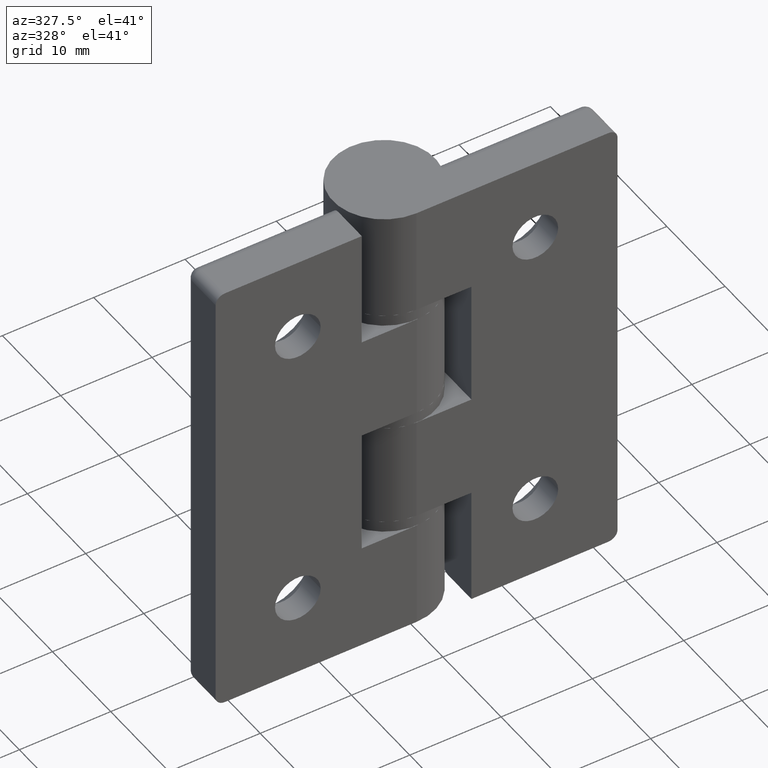
[diagram: clean part render]
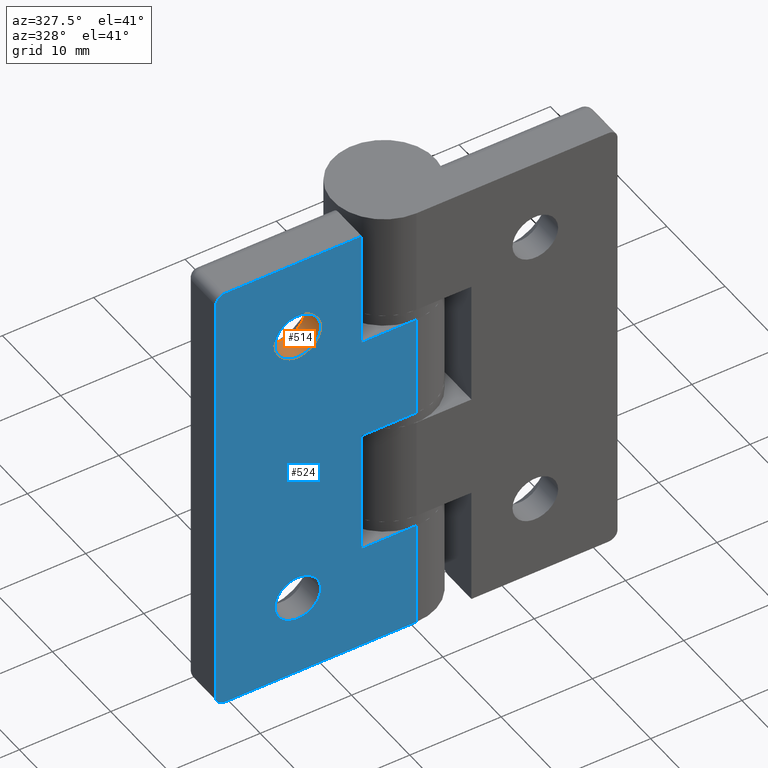
[diagram: same view with the hole feature highlighted: cylindrical wall and planar end face, labeled with their STEP entity ids]
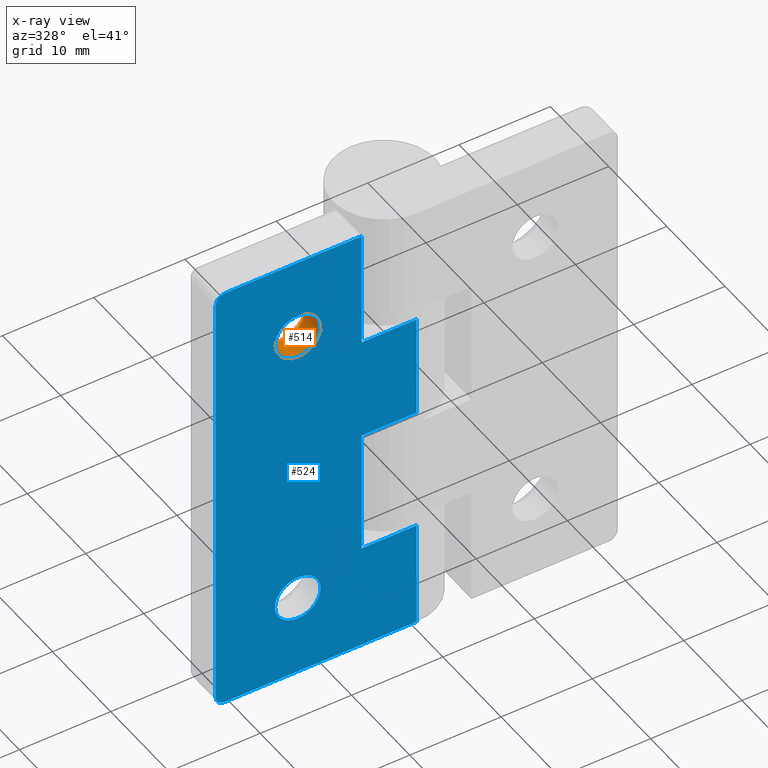
[diagram: x-ray of the same camera — body ghosted, the hole faces saturated]
A machine part, auxiliary view. The highlighted faces form one hole feature of diameter 5 mm: the cylindrical wall (entity #514, orange) and its adjacent planar end face (entity #524, blue) — they share a circular edge in the B-rep.
The next image is the same camera in x-ray (body ghosted, the hole faces saturated) — the bore reads through the body.
Wall:
#54=FACE_BOUND('',#137,.T.);
#98=FACE_OUTER_BOUND('',#136,.T.);
#136=EDGE_LOOP('',(#417));
#137=EDGE_LOOP('',(#418));
#245=CIRCLE('',#565,2.5);
#246=CIRCLE('',#567,2.5);
#285=VERTEX_POINT('',#866);
#286=VERTEX_POINT('',#869);
#338=EDGE_CURVE('',#285,#285,#245,.T.);
#339=EDGE_CURVE('',#286,#286,#246,.T.);
#417=ORIENTED_EDGE('',*,*,#339,.F.);
#418=ORIENTED_EDGE('',*,*,#338,.T.);
#493=CYLINDRICAL_SURFACE('',#566,2.5);
#514=ADVANCED_FACE('',(#98,#54),#493,.F.);
#565=AXIS2_PLACEMENT_3D('',#867,#684,#685);
#566=AXIS2_PLACEMENT_3D('',#868,#686,#687);
#567=AXIS2_PLACEMENT_3D('',#870,#688,#689);
#684=DIRECTION('center_axis',(-1.26161707343768E-16,1.,0.));
#685=DIRECTION('ref_axis',(1.,1.26161707343768E-16,0.));
#686=DIRECTION('center_axis',(-1.26161707343768E-16,1.,0.));
#687=DIRECTION('ref_axis',(1.,1.26161707343768E-16,0.));
#688=DIRECTION('center_axis',(-1.22464679914735E-16,1.,0.));
#689=DIRECTION('ref_axis',(1.,1.26161707343768E-16,0.));
#866=CARTESIAN_POINT('',(-10.5,2.75,-9.));
#867=CARTESIAN_POINT('Origin',(-13.,2.75,-9.));
#868=CARTESIAN_POINT('Origin',(-13.,-53.1996563563738,-9.));
#869=CARTESIAN_POINT('',(-15.5,-3.15404268359419E-16,-9.));
#870=CARTESIAN_POINT('Origin',(-13.,0.,-9.));
End face:
#60=FACE_BOUND('',#153,.T.);
#61=FACE_BOUND('',#154,.T.);
#76=PLANE('',#584);
#108=FACE_OUTER_BOUND('',#152,.T.);
#152=EDGE_LOOP('',(#453,#454,#455,#456,#457,#458,#459,#460,#461,#462,#463,
#464));
#153=EDGE_LOOP('',(#465));
#154=EDGE_LOOP('',(#466));
#178=LINE('',#832,#209);
#180=LINE('',#840,#211);
#189=LINE('',#875,#220);
#191=LINE('',#879,#222);
#192=LINE('',#886,#223);
#194=LINE('',#893,#225);
#196=LINE('',#900,#227);
#197=LINE('',#902,#228);
#198=LINE('',#909,#229);
#199=LINE('',#910,#230);
#209=VECTOR('',#650,48.);
#211=VECTOR('',#660,21.);
#220=VECTOR('',#693,13.8);
#222=VECTOR('',#697,6.00000000000001);
#223=VECTOR('',#706,6.00000000000001);
#225=VECTOR('',#712,6.);
#227=VECTOR('',#720,13.);
#228=VECTOR('',#723,11.8);
#229=VECTOR('',#734,11.4);
#230=VECTOR('',#735,15.);
#238=CIRCLE('',#551,1.);
#239=CIRCLE('',#554,1.);
#244=CIRCLE('',#563,2.5);
#246=CIRCLE('',#567,2.5);
#270=VERTEX_POINT('',#824);
#271=VERTEX_POINT('',#826);
#272=VERTEX_POINT('',#830);
#273=VERTEX_POINT('',#834);
#274=VERTEX_POINT('',#838);
#284=VERTEX_POINT('',#863);
#286=VERTEX_POINT('',#869);
#287=VERTEX_POINT('',#872);
#288=VERTEX_POINT('',#874);
#289=VERTEX_POINT('',#878);
#291=VERTEX_POINT('',#884);
#293=VERTEX_POINT('',#890);
#294=VERTEX_POINT('',#892);
#296=VERTEX_POINT('',#898);
#319=EDGE_CURVE('',#270,#271,#238,.T.);
#322=EDGE_CURVE('',#270,#272,#178,.T.);
#324=EDGE_CURVE('',#273,#272,#239,.T.);
#326=EDGE_CURVE('',#274,#273,#180,.T.);
#337=EDGE_CURVE('',#284,#284,#244,.T.);
#339=EDGE_CURVE('',#286,#286,#246,.T.);
#341=EDGE_CURVE('',#288,#287,#189,.T.);
#343=EDGE_CURVE('',#289,#288,#191,.T.);
#347=EDGE_CURVE('',#287,#291,#192,.T.);
#350=EDGE_CURVE('',#294,#293,#194,.T.);
#354=EDGE_CURVE('',#293,#296,#196,.T.);
#355=EDGE_CURVE('',#289,#274,#197,.T.);
#357=EDGE_CURVE('',#294,#291,#198,.T.);
#358=EDGE_CURVE('',#296,#271,#199,.T.);
#453=ORIENTED_EDGE('',*,*,#324,.F.);
#454=ORIENTED_EDGE('',*,*,#326,.F.);
#455=ORIENTED_EDGE('',*,*,#355,.F.);
#456=ORIENTED_EDGE('',*,*,#343,.T.);
#457=ORIENTED_EDGE('',*,*,#341,.T.);
#458=ORIENTED_EDGE('',*,*,#347,.T.);
#459=ORIENTED_EDGE('',*,*,#357,.F.);
#460=ORIENTED_EDGE('',*,*,#350,.T.);
#461=ORIENTED_EDGE('',*,*,#354,.T.);
#462=ORIENTED_EDGE('',*,*,#358,.T.);
#463=ORIENTED_EDGE('',*,*,#319,.F.);
#464=ORIENTED_EDGE('',*,*,#322,.T.);
#465=ORIENTED_EDGE('',*,*,#337,.T.);
#466=ORIENTED_EDGE('',*,*,#339,.T.);
#524=ADVANCED_FACE('',(#108,#60,#61),#76,.T.);
#551=AXIS2_PLACEMENT_3D('',#827,#644,#645);
#554=AXIS2_PLACEMENT_3D('',#836,#654,#655);
#563=AXIS2_PLACEMENT_3D('',#864,#680,#681);
#567=AXIS2_PLACEMENT_3D('',#870,#688,#689);
#584=AXIS2_PLACEMENT_3D('',#908,#732,#733);
#644=DIRECTION('center_axis',(-1.22464679914735E-16,1.,0.));
#645=DIRECTION('ref_axis',(-0.707106781186549,0.,0.707106781186546));
#650=DIRECTION('',(0.,0.,-1.));
#654=DIRECTION('center_axis',(-1.22464679914735E-16,1.,0.));
#655=DIRECTION('ref_axis',(-0.707106781186551,0.,-0.707106781186544));
#660=DIRECTION('',(-1.,-1.22464679914735E-16,0.));
#680=DIRECTION('center_axis',(-1.22464679914735E-16,1.,0.));
#681=DIRECTION('ref_axis',(1.,1.26161707343768E-16,0.));
#688=DIRECTION('center_axis',(-1.22464679914735E-16,1.,0.));
#689=DIRECTION('ref_axis',(1.,1.26161707343768E-16,0.));
#693=DIRECTION('',(3.21803775253669E-16,3.9409596331794E-32,1.));
#697=DIRECTION('',(-1.,-1.22464679914735E-16,0.));
#706=DIRECTION('',(1.,1.22464679914735E-16,0.));
#712=DIRECTION('',(-1.,-1.22464679914735E-16,0.));
#720=DIRECTION('',(3.41607084500048E-16,4.18348022599043E-32,1.));
#723=DIRECTION('',(0.,0.,-1.));
#732=DIRECTION('center_axis',(1.22464679914735E-16,-1.,0.));
#733=DIRECTION('ref_axis',(-1.,-1.22464679914735E-16,0.));
#734=DIRECTION('',(0.,0.,-1.));
#735=DIRECTION('',(-1.,-1.22464679914735E-16,0.));
#824=CARTESIAN_POINT('',(-22.,-2.69422295812418E-15,-1.));
#826=CARTESIAN_POINT('',(-21.,-2.57175827820944E-15,0.));
#827=CARTESIAN_POINT('Origin',(-21.,0.,-1.));
#830=CARTESIAN_POINT('',(-22.,-2.69422295812418E-15,-49.));
#832=CARTESIAN_POINT('',(-22.,-2.69422295812418E-15,0.));
#834=CARTESIAN_POINT('',(-21.,-2.57175827820944E-15,-50.));
#836=CARTESIAN_POINT('Origin',(-21.,0.,-49.));
#838=CARTESIAN_POINT('',(0.,0.,-50.));
#840=CARTESIAN_POINT('',(0.,0.,-50.));
#863=CARTESIAN_POINT('',(-15.5,-3.15404268359419E-16,-41.));
#864=CARTESIAN_POINT('Origin',(-13.,0.,-41.));
#869=CARTESIAN_POINT('',(-15.5,-3.15404268359419E-16,-9.));
#870=CARTESIAN_POINT('Origin',(-13.,0.,-9.));
#872=CARTESIAN_POINT('',(-6.00000000000001,-5.55111512312578E-16,-24.4));
#874=CARTESIAN_POINT('',(-6.00000000000001,-5.55111512312578E-16,-38.2));
#875=CARTESIAN_POINT('',(-6.,-5.55111512312578E-16,-19.1));
#878=CARTESIAN_POINT('',(0.,0.,-38.2));
#879=CARTESIAN_POINT('',(4.5,5.55111512312578E-16,-38.2));
#884=CARTESIAN_POINT('',(0.,0.,-24.4));
#886=CARTESIAN_POINT('',(-3.,-2.77555756156289E-16,-24.4));
#890=CARTESIAN_POINT('',(-6.,-5.55111512312578E-16,-13.));
#892=CARTESIAN_POINT('',(0.,0.,-13.));
#893=CARTESIAN_POINT('',(4.5,5.55111512312578E-16,-13.));
#898=CARTESIAN_POINT('',(-6.,-5.55111512312578E-16,0.));
#900=CARTESIAN_POINT('',(-6.,-5.55111512312578E-16,-6.5));
#902=CARTESIAN_POINT('',(0.,0.,0.));
#908=CARTESIAN_POINT('Origin',(0.,0.,0.));
#909=CARTESIAN_POINT('',(0.,0.,0.));
#910=CARTESIAN_POINT('',(0.,0.,0.));